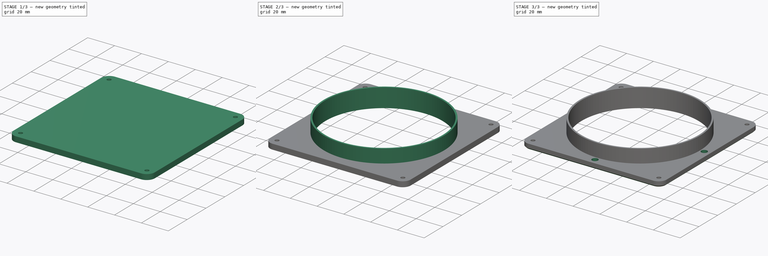
[diagram: build sequence overview — one tinted view per stage of 3, left to right]
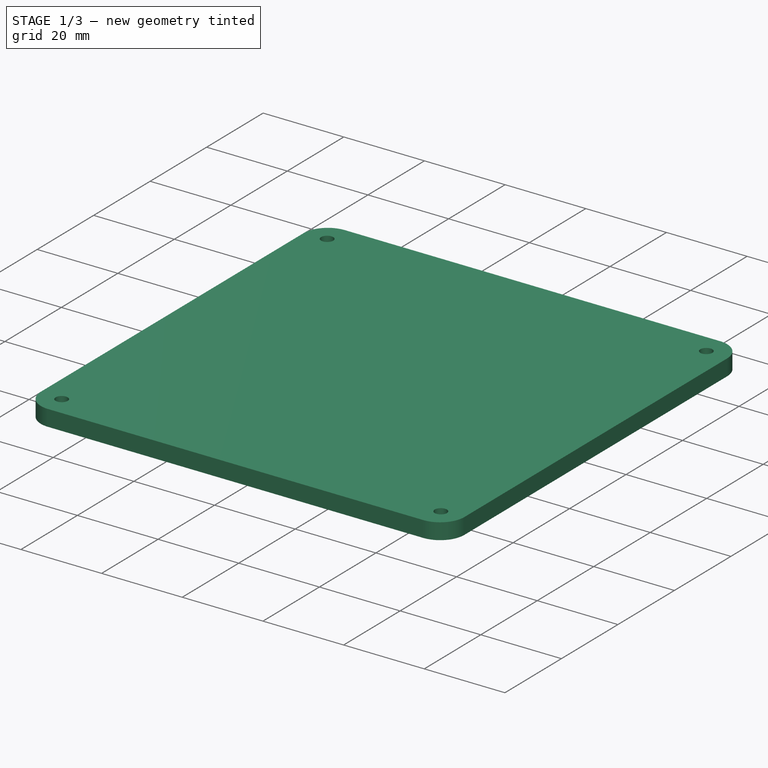
[diagram: stage 1 of 3 — iso view after this stage's code; geometry added in this stage tinted green]
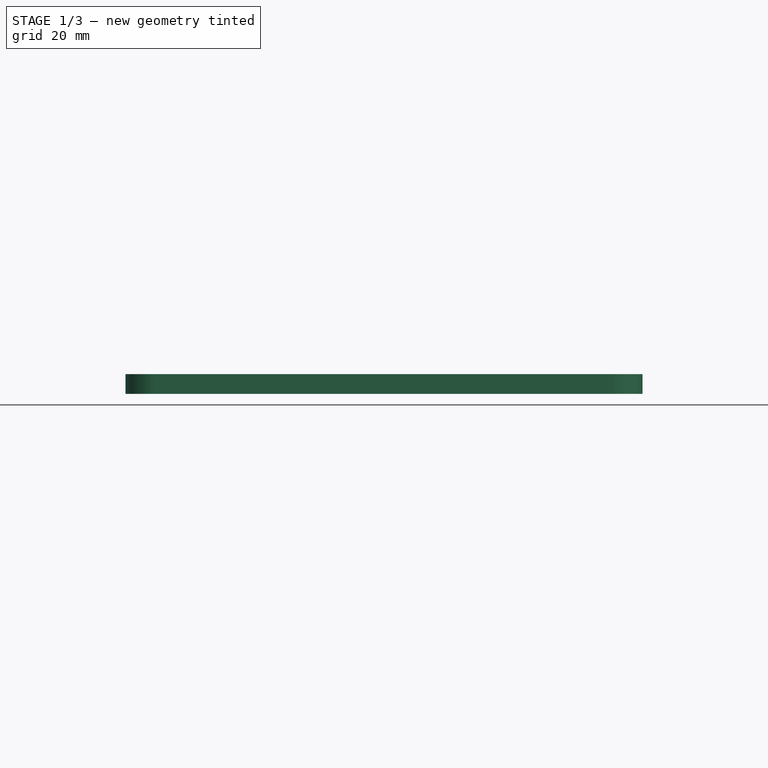
[diagram: stage 1 of 3 — front view after this stage's code; geometry added in this stage tinted green]
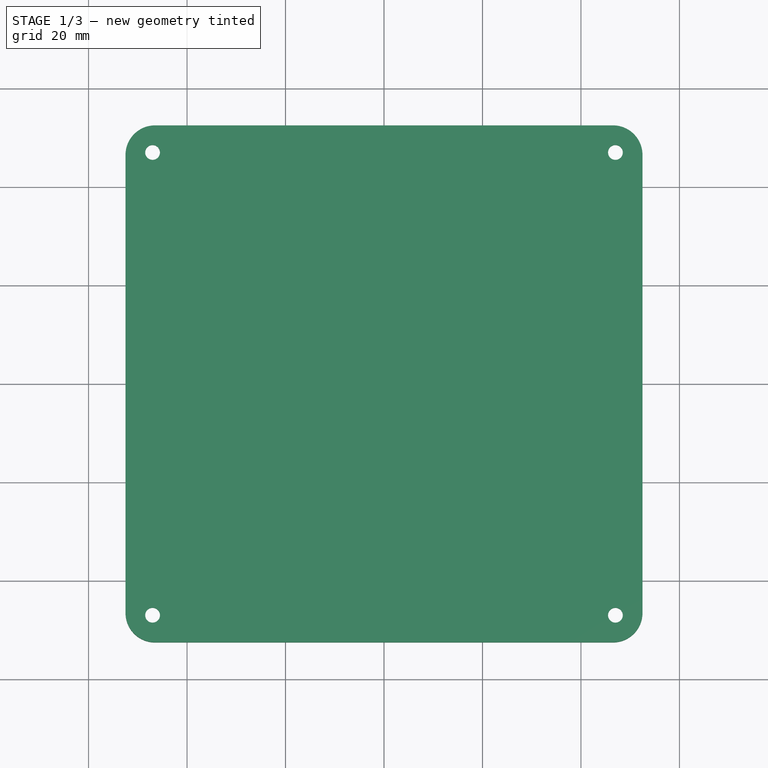
[diagram: stage 1 of 3 — top view after this stage's code; geometry added in this stage tinted green]
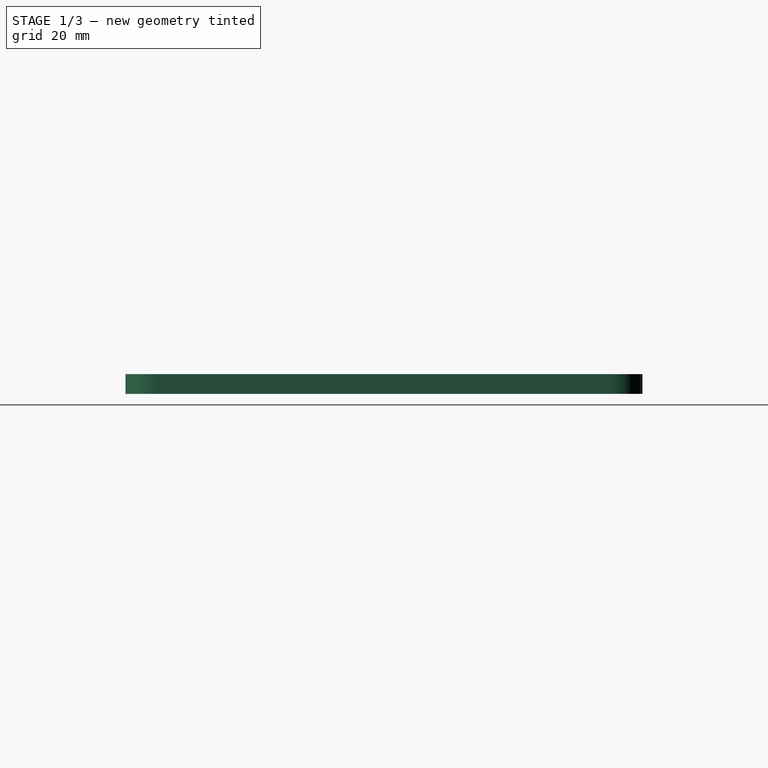
[diagram: stage 1 of 3 — right view after this stage's code; geometry added in this stage tinted green]
FCSTD DOCUMENT  (FreeCAD 1.0R39109 (Git))
Label: hole_cover
License: All rights reserved
LicenseURL: https://en.wikipedia.org/wiki/All_rights_reserved
objects: Sketcher::SketchObject×5, PartDesign::Pad×2, PartDesign::Hole×2, Spreadsheet::Sheet×1, PartDesign::Plane×1, PartDesign::Pocket×1, PartDesign::Chamfer×1, PartDesign::Body×1
note: 30 computed .brp shape members not serialized (recipe doc carries the construction recipe); baked Part::Feature solids carry a one-line shape summary decoded from their .brp

FEATURE [Spreadsheet::Sheet] Spreadsheet
  cells = A1='Tube outer diameter; B1(tube_outer_dia)=90; C1='Plate edge length; D1(plate_edge_length)=105; E1='Flange hole spacing; F1(flange_hole_spacing)=94; G1='External mount hole spacing; H1(ext_hole_spacing)=96; A2='Tube wall thickness; B2(tube_wall_thick)=1.2; C2='Plate fillet; D2(plate_fillet)=6; A3='Tube Height; B3(tube_height)=10; C3='Plate height; D3(plate_height)=4; E3='Flange hole diameter; F3(flange_hole_dia)=3; G3='External mount hole diameter; H3(ext_hole_dia)=4.5; C4='Plate chamfer; D4(plate_chamfer)=1; E4='Flange hole sink; F4(flange_hole_sink)=7; A7='Calculations:; A8='tube inner size; B8(tube_inner_hole)==tube_outer_dia - tube_wall_thick * 2
FEATURE [Sketcher::SketchObject] Sketch
  ArcFitTolerance = 1e-06
  AttachmentSupport = -> [XY_Plane]
  FullyConstrained = true
  MakeInternals = false
  MapMode = 5
  expr: Constraints[10] = Spreadsheet.plate_fillet
  expr: Constraints[23] = Spreadsheet.plate_fillet
  expr: Constraints[24] = Spreadsheet.plate_fillet
  expr: Constraints[25] = Spreadsheet.plate_fillet
  expr: Constraints[26] = Spreadsheet.plate_edge_length
  expr: Constraints[5] = Spreadsheet.plate_edge_length
  sketch-geometry (12):
    g0: LineSegment StartX=-52.5 StartY=46.5 StartZ=0 EndX=-52.5 EndY=-46.5 EndZ=0
    g1: LineSegment StartX=-46.5 StartY=-52.5 StartZ=0 EndX=46.5 EndY=-52.5 EndZ=0
    g2: LineSegment StartX=52.5 StartY=-46.5 StartZ=0 EndX=52.5 EndY=46.5 EndZ=0
    g3: LineSegment StartX=46.5 StartY=52.5 StartZ=0 EndX=-46.5 EndY=52.5 EndZ=0
    g4: ArcOfCircle CenterX=-46.5 CenterY=46.5 CenterZ=0 NormalX=0 NormalY=0 NormalZ=1 AngleXU=0 Radius=6 StartAngle=1.5708 EndAngle=3.14159
    g5: GeomPoint [constr] X=-52.5 Y=52.5 Z=0
    g6: ArcOfCircle CenterX=46.5 CenterY=46.5 CenterZ=0 NormalX=0 NormalY=0 NormalZ=1 AngleXU=0 Radius=6 StartAngle=0 EndAngle=1.5708
    g7: GeomPoint [constr] X=52.5 Y=52.5 Z=0
    g8: ArcOfCircle CenterX=46.5 CenterY=-46.5 CenterZ=0 NormalX=0 NormalY=0 NormalZ=1 AngleXU=0 Radius=6 StartAngle=4.71239 EndAngle=6.28319
    g9: GeomPoint [constr] X=52.5 Y=-52.5 Z=0
    g10: ArcOfCircle CenterX=-46.5 CenterY=-46.5 CenterZ=0 NormalX=0 NormalY=0 NormalZ=1 AngleXU=0 Radius=6 StartAngle=3.14159 EndAngle=4.71239
    g11: GeomPoint [constr] X=-52.5 Y=-52.5 Z=0
  constraints (27):
    c: Vertical(g0)
    c: Vertical(g2)
    c: Horizontal(g1)
    c: Horizontal(g3)
    c: Symmetric(g7,g11,g-1)
    c: DistanceX(g5,g7) = 105
    c: PointOnObject(g5,g3)
    c: PointOnObject(g5,g0)
    c: Tangent(g3,g4) = -1.5708
    c: Tangent(g0,g4) = -1.5708
    c: DistanceX(g0,g4) = 6
    c: PointOnObject(g7,g3)
    c: PointOnObject(g7,g2)
    c: Tangent(g3,g6) = -1.5708
    c: Tangent(g2,g6) = -1.5708
    c: PointOnObject(g9,g2)
    c: PointOnObject(g9,g1)
    c: Tangent(g2,g8) = -1.5708
    c: Tangent(g1,g8) = -1.5708
    c: PointOnObject(g11,g1)
    c: PointOnObject(g11,g0)
    c: Tangent(g1,g10) = -1.5708
    c: Tangent(g0,g10) = -1.5708
    c: DistanceX(g0,g10) = 6
    c: DistanceX(g8,g2) = 6
    c: DistanceX(g6,g2) = 6
    c: DistanceY(g11,g5) = 105
FEATURE [PartDesign::Pad] Pad  label="mounting_plate"
  Direction = (0,0,1)
  Length = 4
  Length2 = 10
  Profile = -> Sketch
  ReferenceAxis = -> Sketch [N_Axis]
  Refine = true
  Suppressed = false
  Type = 0
  expr: Length = Spreadsheet.plate_height
FEATURE [Sketcher::SketchObject] Sketch001
  ArcFitTolerance = 1e-06
  AttachmentSupport = -> [XY_Plane]
  FullyConstrained = true
  MakeInternals = false
  MapMode = 5
  expr: Constraints[10] = Spreadsheet.flange_hole_spacing
  expr: Constraints[14] = 1
  sketch-geometry (8):
    g0: LineSegment [constr] StartX=-47 StartY=47 StartZ=0 EndX=-47 EndY=-47 EndZ=0
    g1: LineSegment [constr] StartX=-47 StartY=-47 StartZ=0 EndX=47 EndY=-47 EndZ=0
    g2: LineSegment [constr] StartX=47 StartY=-47 StartZ=0 EndX=47 EndY=47 EndZ=0
    g3: LineSegment [constr] StartX=47 StartY=47 StartZ=0 EndX=-47 EndY=47 EndZ=0
    g4: Circle CenterX=-47 CenterY=47 CenterZ=0 NormalX=0 NormalY=0 NormalZ=1 AngleXU=0 Radius=0.5
    g5: Circle CenterX=47 CenterY=47 CenterZ=0 NormalX=0 NormalY=0 NormalZ=1 AngleXU=0 Radius=0.5
    g6: Circle CenterX=47 CenterY=-47 CenterZ=0 NormalX=0 NormalY=0 NormalZ=1 AngleXU=0 Radius=0.5
    g7: Circle CenterX=-47 CenterY=-47 CenterZ=0 NormalX=0 NormalY=0 NormalZ=1 AngleXU=0 Radius=0.5
  constraints (19):
    c: Coincident(g0,g1)
    c: Coincident(g1,g2)
    c: Coincident(g2,g3)
    c: Coincident(g3,g0)
    c: Vertical(g0)
    c: Vertical(g2)
    c: Horizontal(g1)
    c: Horizontal(g3)
    c: Symmetric(g3,g0,g-1)
    c: Equal(g3,g0)
    c: DistanceX(g3,g3) = 94
    c: Equal(g7,g4)
    c: Equal(g4,g5)
    c: Equal(g4,g6)
    c: Diameter(g4) = 1
    c: Coincident(g4,g0)
    c: Coincident(g5,g2)
    c: Coincident(g6,g1)
    c: Coincident(g7,g0)
FEATURE [PartDesign::Hole] Hole  label="mounting_holes"
  BaseFeature = -> Pad
  CustomThreadClearance = 0
  Depth = 65.8284
  DepthType = 1
  Diameter = 3
  DrillForDepth = false
  DrillPoint = 1
  DrillPointAngle = 118
  HoleCutCountersinkAngle = 90
  HoleCutCustomValues = false
  HoleCutDepth = 0
  HoleCutDiameter = 7
  HoleCutType = 2
  ModelThread = false
  Profile = -> Sketch001
  Refine = true
  Reversed = true
  Suppressed = false
  Tapered = false
  TaperedAngle = 90
  ThreadClass = 0
  ThreadDepth = 65.8284
  ThreadDepthType = 0
  ThreadDirection = 0
  ThreadFit = 0
  ThreadSize = 0
  ThreadType = 0
  Threaded = false
  UseCustomThreadClearance = false
  expr: Diameter = Spreadsheet.flange_hole_dia
  expr: HoleCutDiameter = Spreadsheet.flange_hole_sink
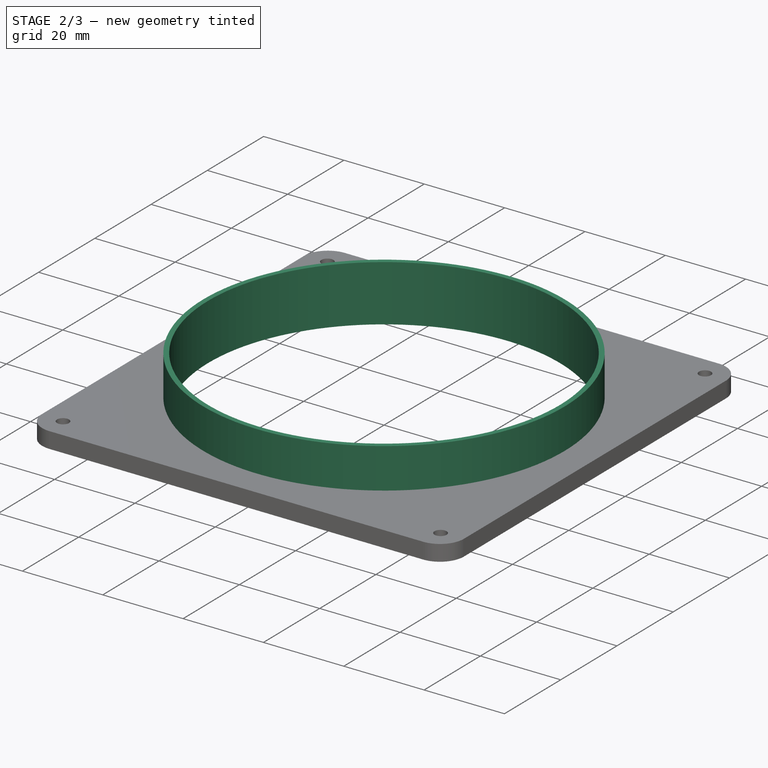
[diagram: stage 2 of 3 — iso view after this stage's code; geometry added in this stage tinted green]
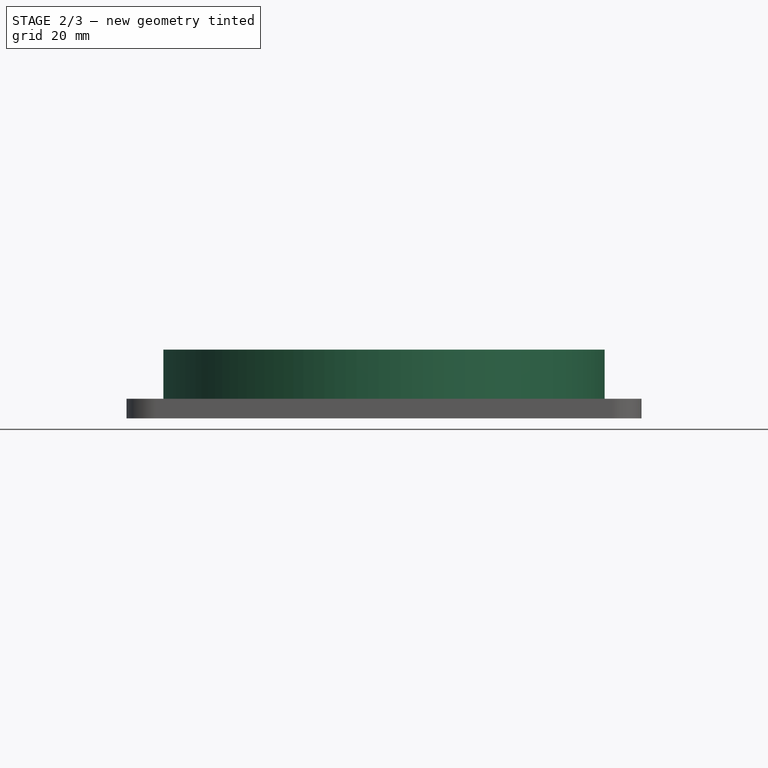
[diagram: stage 2 of 3 — front view after this stage's code; geometry added in this stage tinted green]
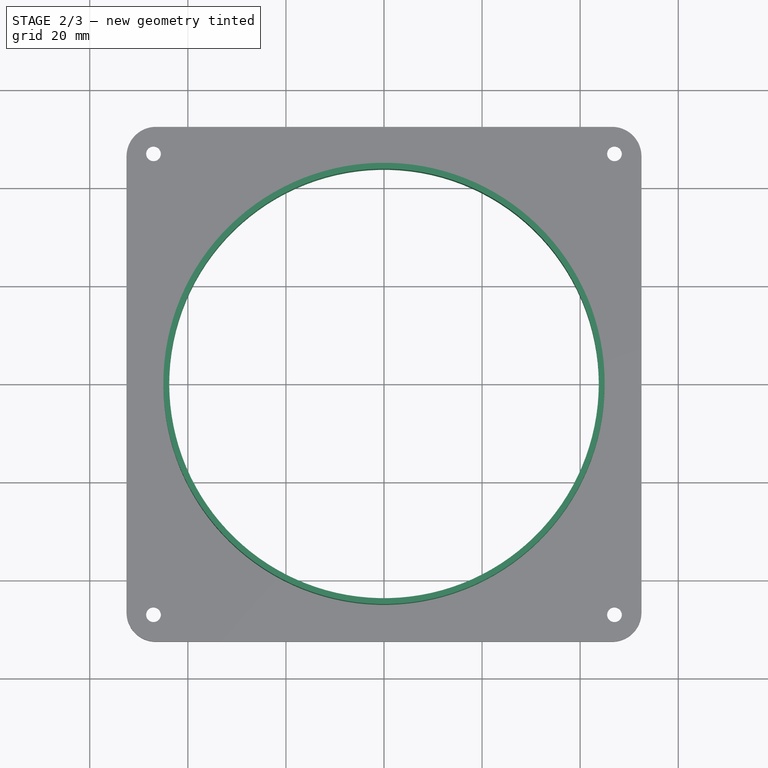
[diagram: stage 2 of 3 — top view after this stage's code; geometry added in this stage tinted green]
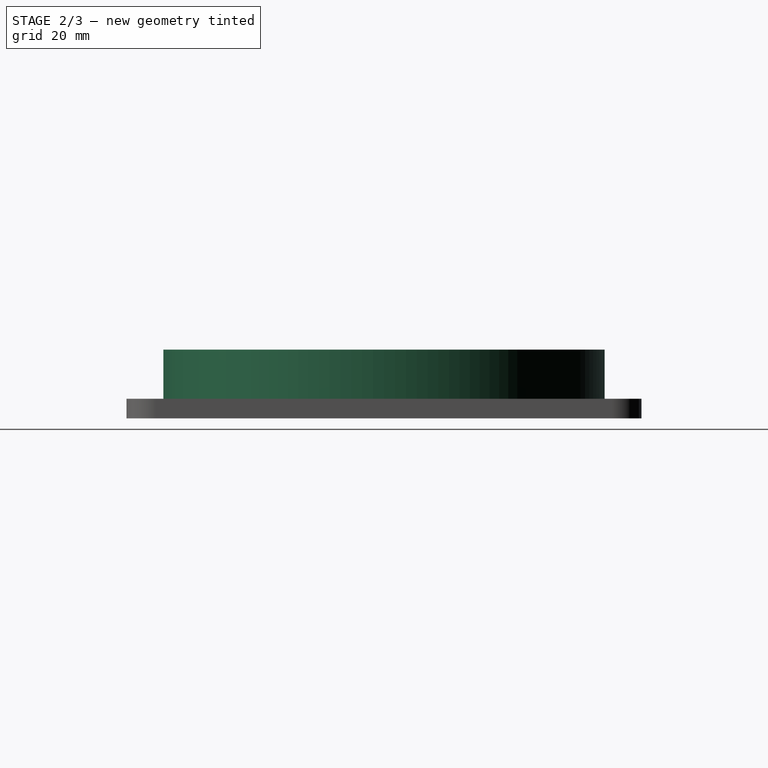
[diagram: stage 2 of 3 — right view after this stage's code; geometry added in this stage tinted green]
FEATURE [PartDesign::Plane] DatumPlane  label="top_plate_plane"
  AttachmentSupport = -> [Hole]
  Length = 126
  MapMode = 5
  Placement = pos=(0,0,4) rot=(0,0,1;0rad)
  ResizeMode = 0
  Width = 126
FEATURE [Sketcher::SketchObject] Sketch002
  ArcFitTolerance = 1e-06
  AttachmentSupport = -> [DatumPlane]
  FullyConstrained = true
  MakeInternals = false
  MapMode = 5
  Placement = pos=(0,0,4) rot=(0,0,1;0rad)
  expr: Constraints[1] = Spreadsheet.tube_outer_dia
  sketch-geometry (1):
    g0: Circle CenterX=0 CenterY=0 CenterZ=0 NormalX=0 NormalY=0 NormalZ=1 AngleXU=0 Radius=45
  constraints (2):
    c: Coincident(g0,g-1)
    c: Diameter(g0) = 90
FEATURE [PartDesign::Pad] Pad001  label="tube"
  BaseFeature = -> Hole
  Direction = (0,0,1)
  Length = 10
  Length2 = 10
  Profile = -> Sketch002
  ReferenceAxis = -> Sketch002 [N_Axis]
  Refine = true
  Suppressed = false
  Type = 0
  expr: Length = Spreadsheet.tube_height
FEATURE [Sketcher::SketchObject] Sketch003
  ArcFitTolerance = 1e-06
  AttachmentSupport = -> [Pad001]
  FullyConstrained = true
  MakeInternals = false
  MapMode = 5
  Placement = pos=(0,0,14) rot=(0,0,1;0rad)
  expr: Constraints[1] = Spreadsheet.tube_inner_hole
  sketch-geometry (1):
    g0: Circle CenterX=0 CenterY=0 CenterZ=0 NormalX=0 NormalY=0 NormalZ=1 AngleXU=0 Radius=43.8
  constraints (2):
    c: Coincident(g0,g-1)
    c: Diameter(g0) = 87.6
FEATURE [PartDesign::Pocket] Pocket  label="tube_hole"
  BaseFeature = -> Pad001
  Direction = (0,0,-1)
  Length = 5
  Length2 = 5
  Profile = -> Sketch003
  ReferenceAxis = -> Sketch003 [N_Axis]
  Refine = true
  Suppressed = false
  Type = 1
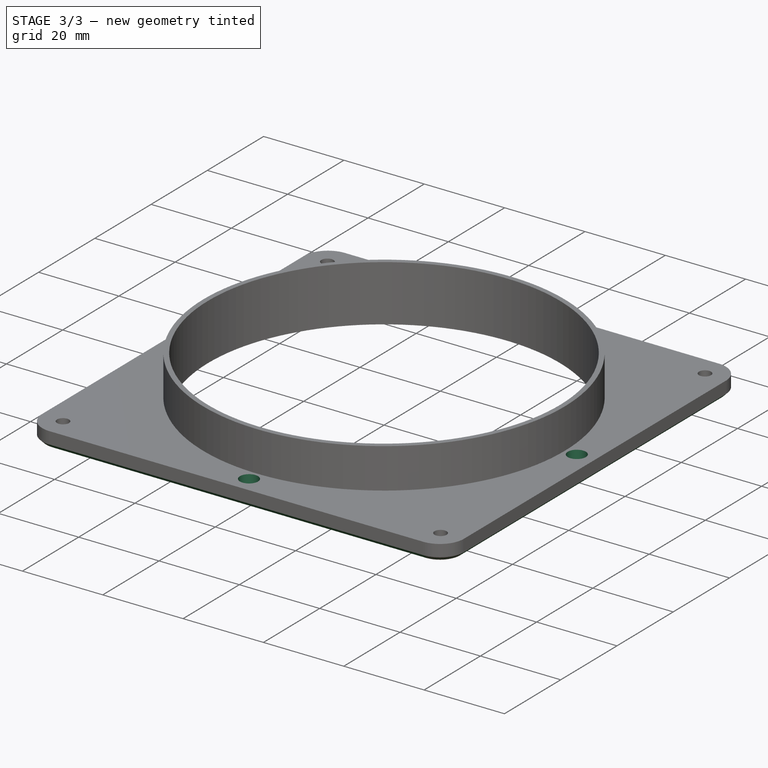
[diagram: stage 3 of 3 — iso view after this stage's code; geometry added in this stage tinted green]
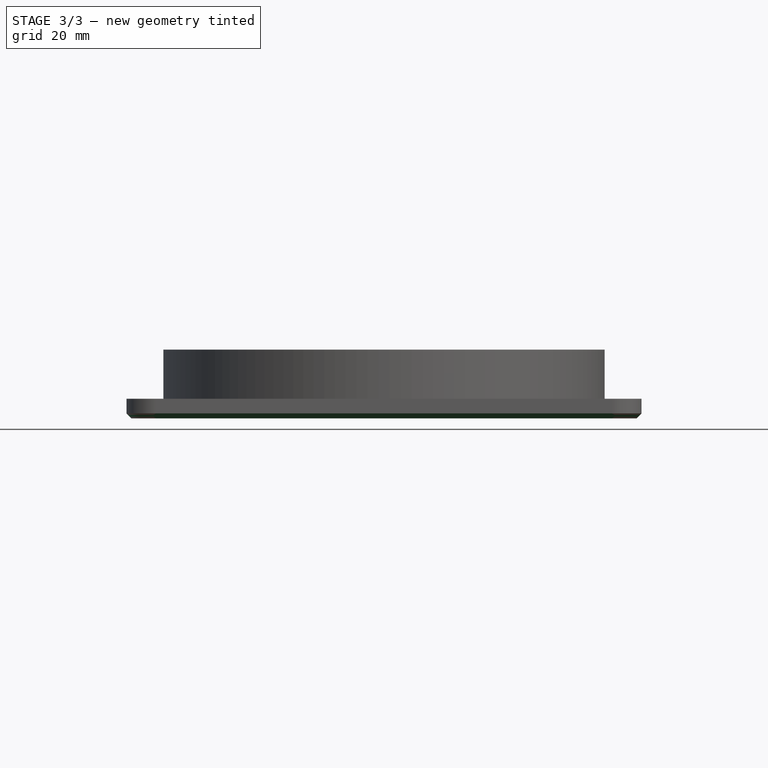
[diagram: stage 3 of 3 — front view after this stage's code; geometry added in this stage tinted green]
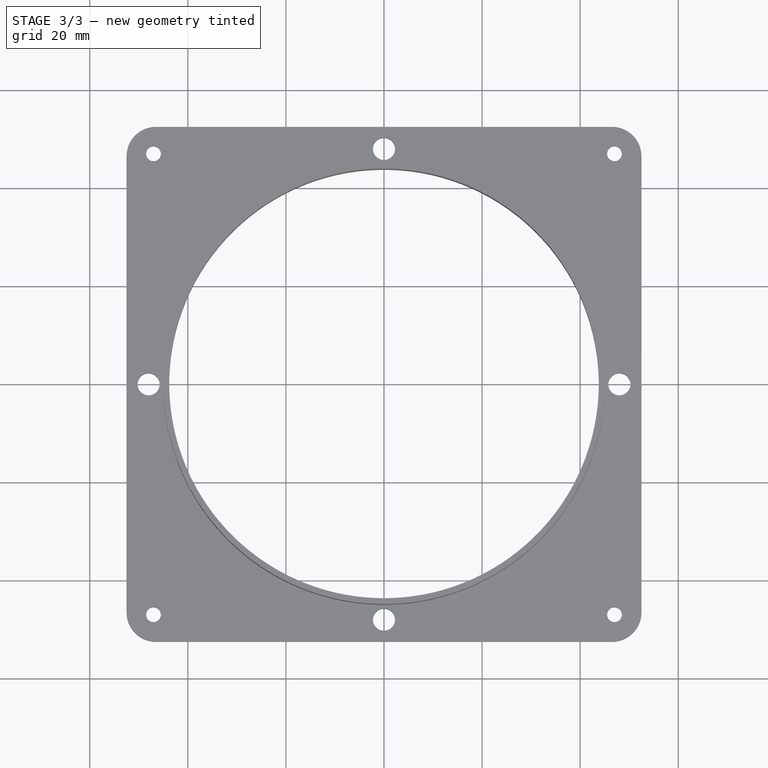
[diagram: stage 3 of 3 — top view after this stage's code; geometry added in this stage tinted green]
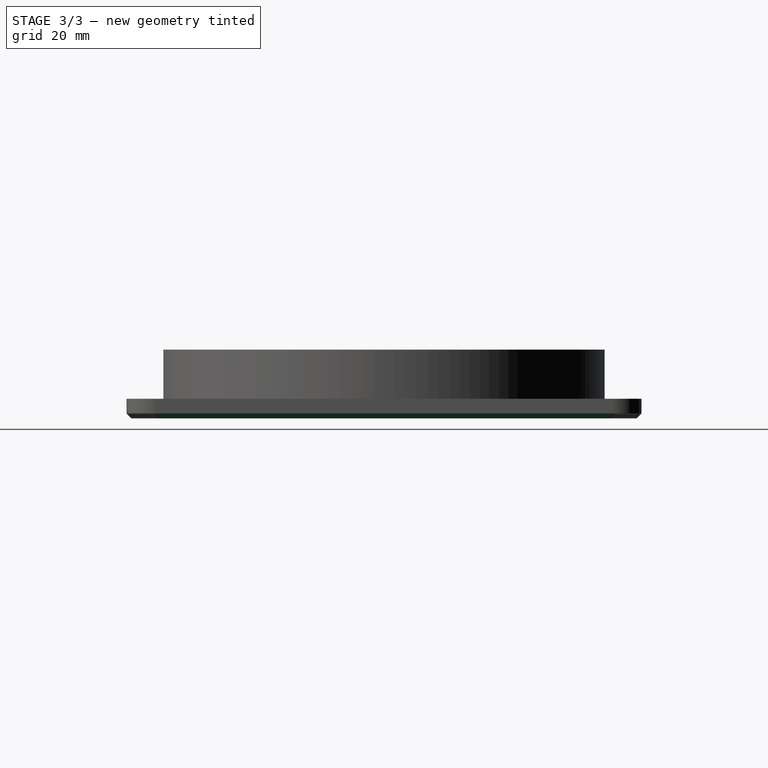
[diagram: stage 3 of 3 — right view after this stage's code; geometry added in this stage tinted green]
FEATURE [Sketcher::SketchObject] Sketch004
  ArcFitTolerance = 1e-06
  AttachmentSupport = -> [XY_Plane]
  FullyConstrained = true
  MakeInternals = false
  MapMode = 5
  expr: Constraints[9] = Spreadsheet.ext_hole_spacing
  sketch-geometry (12):
    g0: LineSegment [constr] StartX=-48 StartY=48 StartZ=0 EndX=-48 EndY=-48 EndZ=0
    g1: LineSegment [constr] StartX=-48 StartY=-48 StartZ=0 EndX=48 EndY=-48 EndZ=0
    g2: LineSegment [constr] StartX=48 StartY=-48 StartZ=0 EndX=48 EndY=48 EndZ=0
    g3: LineSegment [constr] StartX=48 StartY=48 StartZ=0 EndX=-48 EndY=48 EndZ=0
    g4: GeomPoint [constr] X=-3e-16 Y=48 Z=0
    g5: GeomPoint [constr] X=-48 Y=-1.6e-15 Z=0
    g6: GeomPoint [constr] X=-6e-16 Y=-48 Z=0
    g7: GeomPoint [constr] X=48 Y=-7e-16 Z=0
    g8: Circle CenterX=-3e-16 CenterY=48 CenterZ=0 NormalX=0 NormalY=0 NormalZ=1 AngleXU=0 Radius=0.5
    g9: Circle CenterX=48 CenterY=-7e-16 CenterZ=0 NormalX=0 NormalY=0 NormalZ=1 AngleXU=0 Radius=0.5
    g10: Circle CenterX=-6e-16 CenterY=-48 CenterZ=0 NormalX=0 NormalY=0 NormalZ=1 AngleXU=0 Radius=0.5
    g11: Circle CenterX=-48 CenterY=-1.6e-15 CenterZ=0 NormalX=0 NormalY=0 NormalZ=1 AngleXU=0 Radius=0.5
  constraints (23):
    c: Coincident(g0,g1)
    c: Coincident(g1,g2)
    c: Coincident(g2,g3)
    c: Coincident(g3,g0)
    c: Vertical(g0)
    c: Vertical(g2)
    c: Horizontal(g1)
    c: Horizontal(g3)
    c: Symmetric(g2,g0,g-1)
    c: DistanceX(g3,g3) = 96
    c: Equal(g3,g0)
    c: Symmetric(g0,g2,g4)
    c: Symmetric(g0,g0,g5)
    c: Symmetric(g2,g1,g7)
    c: Symmetric(g0,g1,g6)
    c: Diameter(g8) = 1
    c: Equal(g11,g8)
    c: Equal(g8,g9)
    c: Equal(g8,g10)
    c: Coincident(g11,g5)
    c: Coincident(g4,g8)
    c: Coincident(g9,g7)
    c: Coincident(g10,g6)
FEATURE [PartDesign::Hole] Hole001  label="ext_mounting_holes"
  BaseFeature = -> Pocket
  CustomThreadClearance = 0
  Depth = 25
  DepthType = 0
  Diameter = 4.5
  DrillForDepth = false
  DrillPoint = 1
  DrillPointAngle = 118
  HoleCutCountersinkAngle = 90
  HoleCutCustomValues = false
  HoleCutDepth = 0
  HoleCutDiameter = 6.1
  HoleCutType = 0
  ModelThread = false
  Profile = -> Sketch004
  Refine = true
  Reversed = true
  Suppressed = false
  Tapered = false
  TaperedAngle = 90
  ThreadClass = 0
  ThreadDepth = 25
  ThreadDepthType = 0
  ThreadDirection = 0
  ThreadFit = 0
  ThreadSize = 0
  ThreadType = 0
  Threaded = false
  UseCustomThreadClearance = false
  expr: Diameter = Spreadsheet.ext_hole_dia
FEATURE [PartDesign::Chamfer] Chamfer  label="plate_chamfer"
  Angle = 45
  Base = -> Hole001 [Edge3]
  BaseFeature = -> Hole001
  ChamferType = 0
  FlipDirection = false
  Refine = true
  Size = 1
  Size2 = 1
  SupportTransform = false
  Suppressed = false
  UseAllEdges = false
  expr: Size = Spreadsheet.plate_chamfer
FEATURE [PartDesign::Body] Body  label="hole_cover"
  AllowCompound = false
  Group = -> [Sketch,Pad,Sketch001,Hole,DatumPlane,Sketch002,Pad001,Sketch003,Pocket,Sketch004,Hole001,Chamfer]
  Origin = -> Origin
  Tip = -> Chamfer
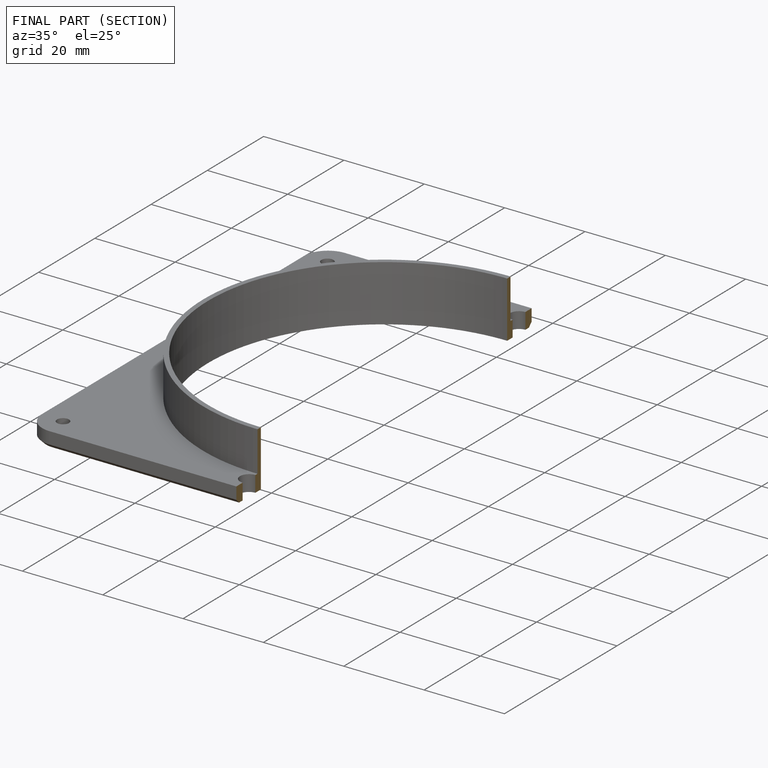
[diagram: finished part — half-section view (interior)]
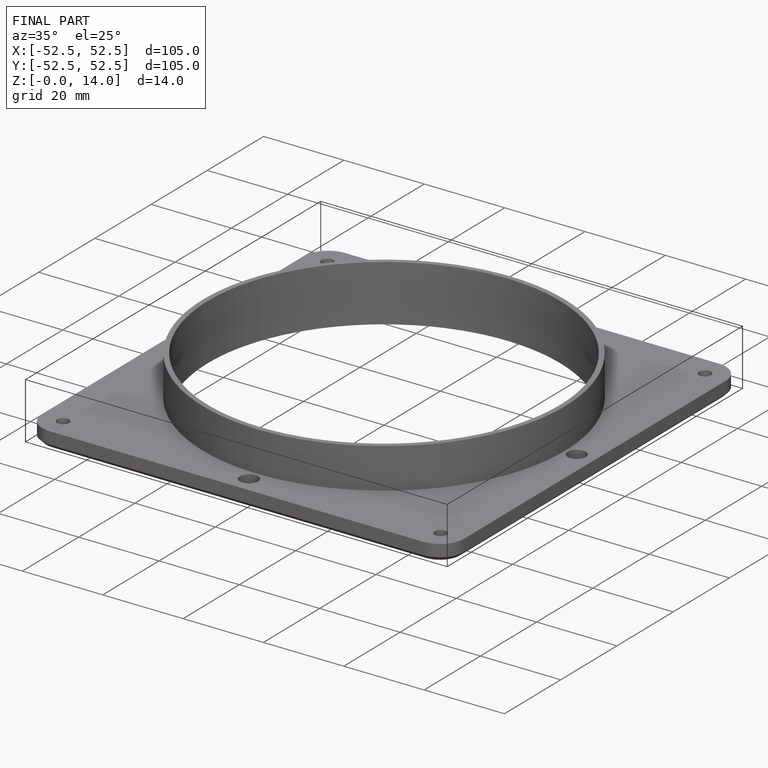
[diagram: finished part — iso view with bounding-box wireframe]
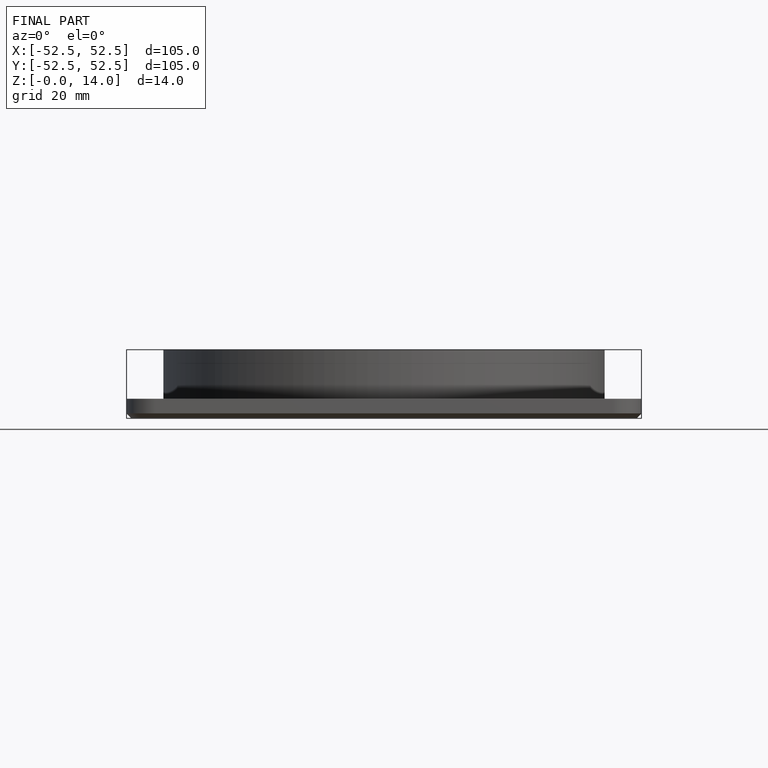
[diagram: finished part — front view with bounding-box wireframe]
